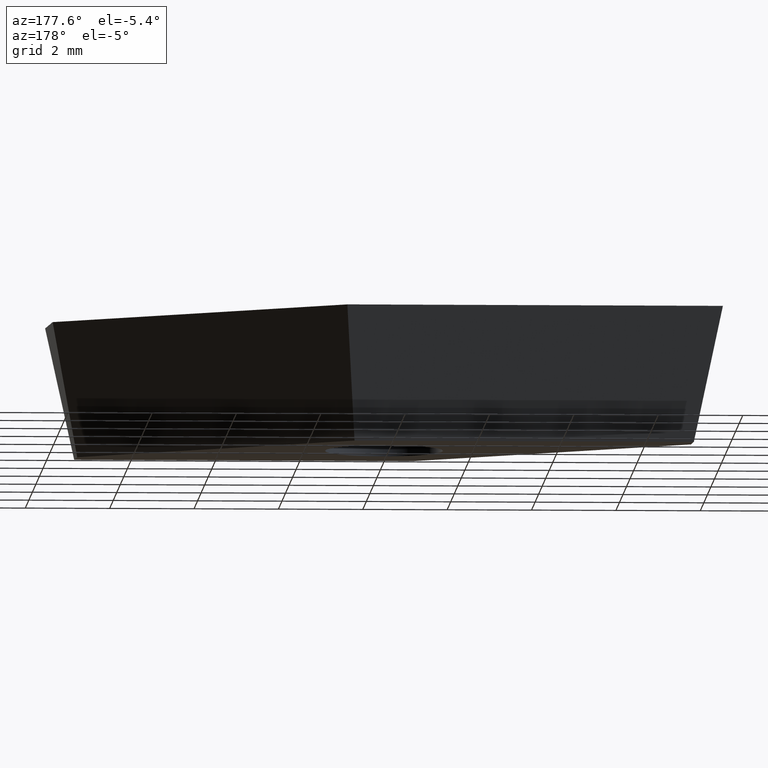
[diagram: clean part render]
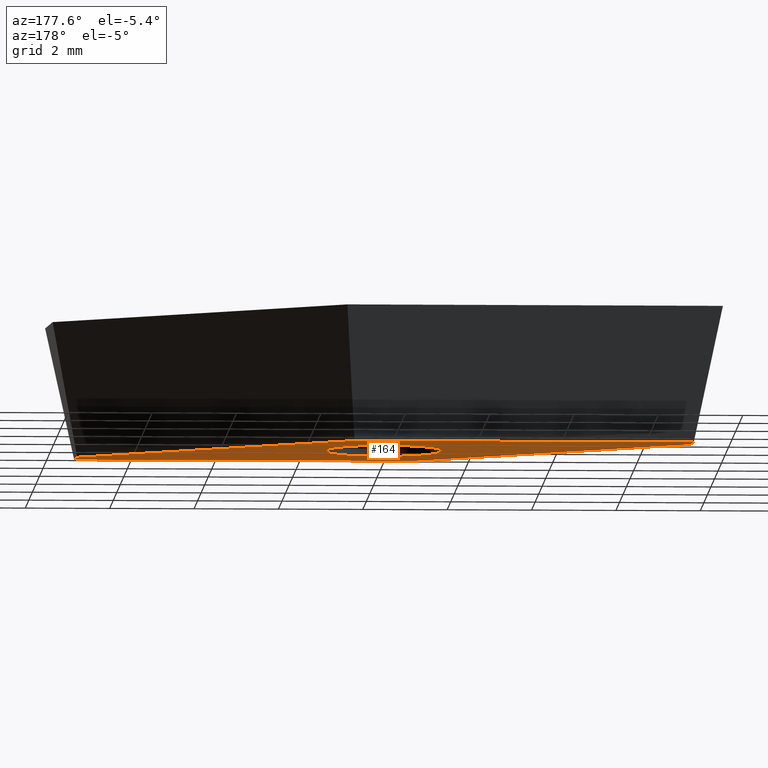
[diagram: same view with one face highlighted and labeled with its STEP entity id]
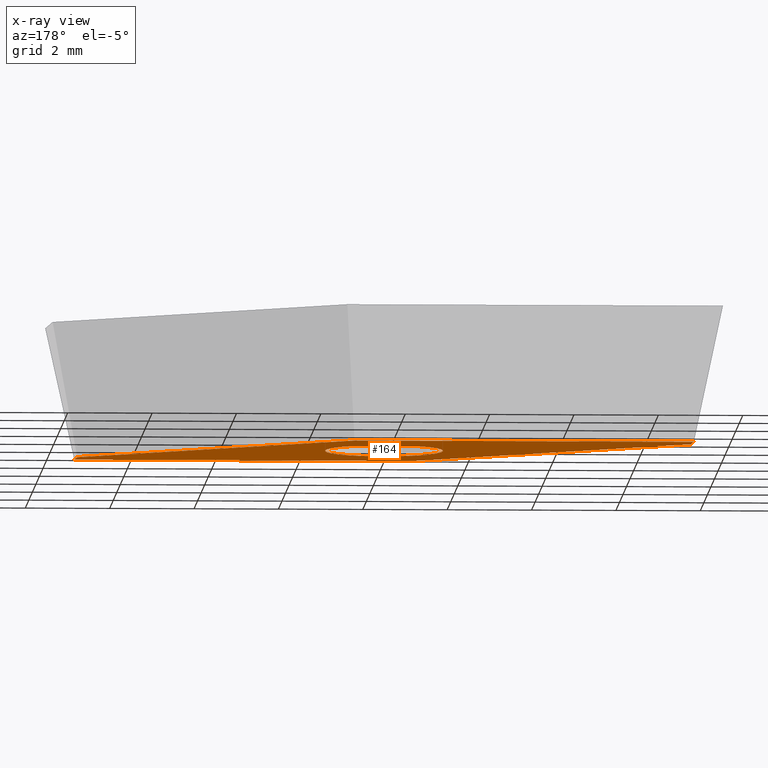
[diagram: x-ray of the same camera — body ghosted, the highlighted face saturated]
A machine part, auxiliary view. The second image highlights one B-rep face of the part: STEP entity #164.
The next image is the same camera in x-ray: the body ghosted, the highlighted face saturated — about 0% of this face is hidden behind the body in this view.
In plain terms, the highlighted planar face has unit normal (0, 0, -1).
Its self-contained STEP definition (entity closure, byte-faithful):
#1 = VECTOR ( 'NONE', #332, 1000.000000000000100 ) ;
#4 = LINE ( 'NONE', #281, #8 ) ;
#5 = VECTOR ( 'NONE', #337, 1000.000000000000000 ) ;
#6 = DIRECTION ( 'NONE',  ( 0.0000000000000000000, 0.0000000000000000000, -1.000000000000000000 ) ) ;
#7 = LINE ( 'NONE', #81, #5 ) ;
#8 = VECTOR ( 'NONE', #266, 1000.000000000000000 ) ;
#20 = LINE ( 'NONE', #336, #1 ) ;
#21 = CARTESIAN_POINT ( 'NONE',  ( -1.001073654690762100, -2.556870616942053400, -3.180000000000000200 ) ) ;
#24 = CIRCLE ( 'NONE', #259, 1.399999999999999900 ) ;
#26 = CIRCLE ( 'NONE', #263, 1.399999999999999900 ) ;
#27 = EDGE_LOOP ( 'NONE', ( #237, #238, #241, #243, #246, #247 ) ) ;
#33 = CARTESIAN_POINT ( 'NONE',  ( 7.192231910145610900, -1.914692324122641700, -3.180000000000000200 ) ) ;
#44 = CARTESIAN_POINT ( 'NONE',  ( -0.0000000000000000000, 0.0000000000000000000, -3.180000000000000200 ) ) ;
#51 = DIRECTION ( 'NONE',  ( -1.000000000000000000, -1.581056252441636400E-016, 0.0000000000000000000 ) ) ;
#58 = EDGE_CURVE ( 'NONE', #295, #284, #308, .T. ) ;
#59 = VECTOR ( 'NONE', #278, 1000.000000000000100 ) ;
#64 = DIRECTION ( 'NONE',  ( -1.000000000000000000, -6.066100545593014700E-017, 0.0000000000000000000 ) ) ;
#68 = DIRECTION ( 'NONE',  ( -0.0000000000000000000, -0.0000000000000000000, -1.000000000000000000 ) ) ;
#71 = CARTESIAN_POINT ( 'NONE',  ( -7.192231910145610000, 1.914692324122639500, -3.180000000000000200 ) ) ;
#76 = VERTEX_POINT ( 'NONE', #33 ) ;
#77 = CARTESIAN_POINT ( 'NONE',  ( -1.399999999999999900, -2.213478753418290800E-016, -3.180000000000000200 ) ) ;
#81 = CARTESIAN_POINT ( 'NONE',  ( -7.433744630409206500, 2.083801351424740200, -3.180000000000000200 ) ) ;
#86 = CARTESIAN_POINT ( 'NONE',  ( 1.001073654690764100, 2.556870616942053400, -3.180000000000000200 ) ) ;
#88 = PLANE ( 'NONE',  #303 ) ;
#92 = CARTESIAN_POINT ( 'NONE',  ( 0.0000000000000000000, 0.0000000000000000000, -3.180000000000000200 ) ) ;
#96 = LINE ( 'NONE', #110, #59 ) ;
#108 = CARTESIAN_POINT ( 'NONE',  ( -0.8061782088420796900, -2.556870616942053400, -3.180000000000000200 ) ) ;
#109 = EDGE_CURVE ( 'NONE', #255, #315, #138, .T. ) ;
#110 = CARTESIAN_POINT ( 'NONE',  ( 7.283376349052112200, -3.218118526079754000, -3.180000000000000200 ) ) ;
#111 = CARTESIAN_POINT ( 'NONE',  ( 0.8061782088420823600, 2.556870616942053400, -3.180000000000000200 ) ) ;
#116 = FACE_BOUND ( 'NONE', #311, .T. ) ;
#117 = FACE_OUTER_BOUND ( 'NONE', #27, .T. ) ;
#133 = VECTOR ( 'NONE', #356, 1000.000000000000000 ) ;
#138 = LINE ( 'NONE', #86, #133 ) ;
#141 = VECTOR ( 'NONE', #64, 1000.000000000000000 ) ;
#153 = CARTESIAN_POINT ( 'NONE',  ( 1.399999999999999900, 4.989732346119967600E-017, -3.180000000000000200 ) ) ;
#164 = ADVANCED_FACE ( 'NONE', ( #116, #117 ), #88, .T. ) ;
#181 = EDGE_CURVE ( 'NONE', #76, #295, #96, .T. ) ;
#186 = CARTESIAN_POINT ( 'NONE',  ( 7.237137390861799500, -2.556870616942053000, -3.180000000000000200 ) ) ;
#233 = ORIENTED_EDGE ( 'NONE', *, *, #327, .F. ) ;
#236 = ORIENTED_EDGE ( 'NONE', *, *, #338, .F. ) ;
#237 = ORIENTED_EDGE ( 'NONE', *, *, #181, .T. ) ;
#238 = ORIENTED_EDGE ( 'NONE', *, *, #58, .T. ) ;
#240 = DIRECTION ( 'NONE',  ( 1.000000000000000000, 1.581056252441636400E-016, 0.0000000000000000000 ) ) ;
#241 = ORIENTED_EDGE ( 'NONE', *, *, #345, .T. ) ;
#243 = ORIENTED_EDGE ( 'NONE', *, *, #350, .T. ) ;
#246 = ORIENTED_EDGE ( 'NONE', *, *, #109, .T. ) ;
#247 = ORIENTED_EDGE ( 'NONE', *, *, #351, .T. ) ;
#255 = VERTEX_POINT ( 'NONE', #329 ) ;
#259 = AXIS2_PLACEMENT_3D ( 'NONE', #44, #68, #51 ) ;
#263 = AXIS2_PLACEMENT_3D ( 'NONE', #292, #298, #301 ) ;
#266 = DIRECTION ( 'NONE',  ( 0.8191520442889951300, -0.5735764363510413900, 0.0000000000000000000 ) ) ;
#278 = DIRECTION ( 'NONE',  ( 0.06975647374412621800, -0.9975640502598242000, 0.0000000000000000000 ) ) ;
#281 = CARTESIAN_POINT ( 'NONE',  ( 7.433744630409207400, -2.083801351424742400, -3.180000000000000200 ) ) ;
#284 = VERTEX_POINT ( 'NONE', #108 ) ;
#292 = CARTESIAN_POINT ( 'NONE',  ( -0.0000000000000000000, 0.0000000000000000000, -3.180000000000000200 ) ) ;
#295 = VERTEX_POINT ( 'NONE', #186 ) ;
#296 = VERTEX_POINT ( 'NONE', #77 ) ;
#297 = VERTEX_POINT ( 'NONE', #153 ) ;
#298 = DIRECTION ( 'NONE',  ( -0.0000000000000000000, -0.0000000000000000000, -1.000000000000000000 ) ) ;
#299 = VERTEX_POINT ( 'NONE', #71 ) ;
#301 = DIRECTION ( 'NONE',  ( -1.000000000000000000, -1.581056252441636400E-016, 0.0000000000000000000 ) ) ;
#303 = AXIS2_PLACEMENT_3D ( 'NONE', #92, #6, #240 ) ;
#308 = LINE ( 'NONE', #21, #141 ) ;
#311 = EDGE_LOOP ( 'NONE', ( #233, #236 ) ) ;
#315 = VERTEX_POINT ( 'NONE', #111 ) ;
#327 = EDGE_CURVE ( 'NONE', #296, #297, #26, .T. ) ;
#329 = CARTESIAN_POINT ( 'NONE',  ( -7.237137390861797700, 2.556870616942053000, -3.180000000000000200 ) ) ;
#332 = DIRECTION ( 'NONE',  ( -0.06975647374412560800, 0.9975640502598242000, 0.0000000000000000000 ) ) ;
#336 = CARTESIAN_POINT ( 'NONE',  ( -7.283376349052110400, 3.218118526079753600, -3.180000000000000200 ) ) ;
#337 = DIRECTION ( 'NONE',  ( -0.8191520442889952400, 0.5735764363510411600, 0.0000000000000000000 ) ) ;
#338 = EDGE_CURVE ( 'NONE', #297, #296, #24, .T. ) ;
#345 = EDGE_CURVE ( 'NONE', #284, #299, #7, .T. ) ;
#350 = EDGE_CURVE ( 'NONE', #299, #255, #20, .T. ) ;
#351 = EDGE_CURVE ( 'NONE', #315, #76, #4, .T. ) ;
#356 = DIRECTION ( 'NONE',  ( 1.000000000000000000, 6.066100545593014700E-017, 0.0000000000000000000 ) ) ;